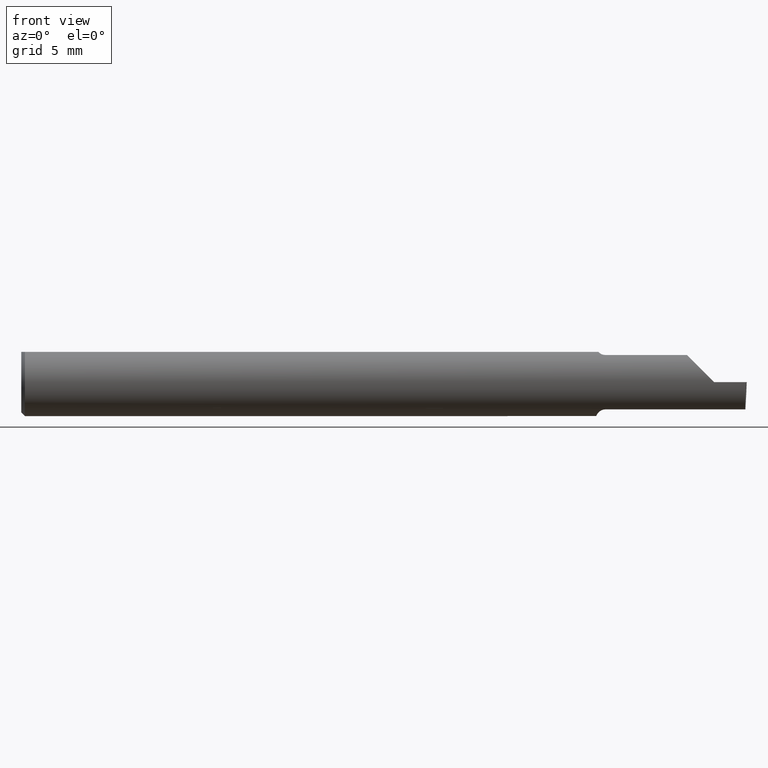
[diagram: clean part render]
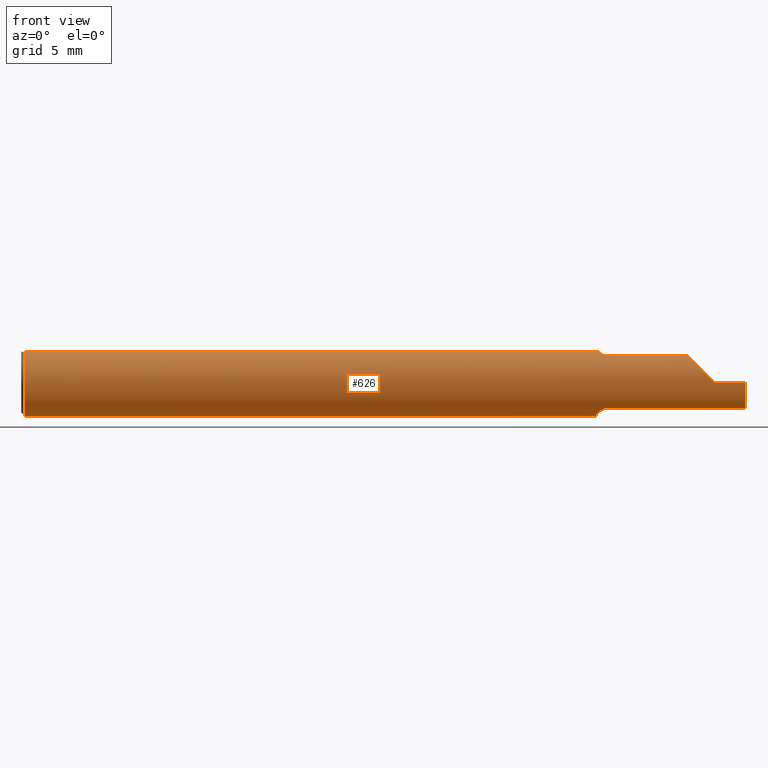
[diagram: same view with one face highlighted and labeled with its STEP entity id]
A machine part, front view. The second image highlights one B-rep face of the part: STEP entity #626.
In plain terms, the highlighted cylindrical surface (edge-blend (fillet) strip) has radius 2.3774 mm, axis along (-1, -0, -0).
Its self-contained STEP definition (entity closure, byte-faithful):
#16 = CARTESIAN_POINT ( 'NONE',  ( 1.796240804999999829, -0.05810704225352107677, 0.07337936794867833123 ) ) ;
#21 = CARTESIAN_POINT ( 'NONE',  ( 1.836620632051321200, -0.05810704225352102820, 0.07337936794867834511 ) ) ;
#25 = EDGE_CURVE ( 'NONE', #123, #194, #84, .T. ) ;
#43 = ORIENTED_EDGE ( 'NONE', *, *, #310, .F. ) ;
#50 = B_SPLINE_CURVE_WITH_KNOTS ( 'NONE', 3,
 ( #173, #559, #242, #719, #163, #417 ),
 .UNSPECIFIED., .F., .F.,
 ( 4, 2, 4 ),
 ( 0.0007041963409106240896, 0.001193146413573845706, 0.001682096486237067649 ),
 .UNSPECIFIED. ) ;
#58 = VERTEX_POINT ( 'NONE', #440 ) ;
#60 = CARTESIAN_POINT ( 'NONE',  ( 1.609999999999999654, -0.05810704225352104207, -0.07337936794867833123 ) ) ;
#68 = VERTEX_POINT ( 'NONE', #228 ) ;
#70 = EDGE_CURVE ( 'NONE', #58, #660, #364, .T. ) ;
#80 = CARTESIAN_POINT ( 'NONE',  ( 1.609999999999999654, -0.05810704225352105595, 0.07337936794867833123 ) ) ;
#81 = VERTEX_POINT ( 'NONE', #360 ) ;
#84 = LINE ( 'NONE', #341, #366 ) ;
#90 =( BOUNDED_CURVE ( )  B_SPLINE_CURVE ( 3, ( #273, #521, #563, #145 ),
 .UNSPECIFIED., .F., .F. ) 
 B_SPLINE_CURVE_WITH_KNOTS ( ( 4, 4 ),
 ( 0.2063001339125309086, 1.107331509589561058 ),
 .UNSPECIFIED. ) 
 CURVE ( )  GEOMETRIC_REPRESENTATION_ITEM ( )  RATIONAL_B_SPLINE_CURVE ( ( 1.000000000000000000, 0.9334817841311873199, 0.9334817841311873199, 1.000000000000000000 ) ) 
 REPRESENTATION_ITEM ( '' )  );
#92 = DIRECTION ( 'NONE',  ( 1.000000000000000000, 0.000000000000000000, 0.000000000000000000 ) ) ;
#95 =( BOUNDED_CURVE ( )  B_SPLINE_CURVE ( 3, ( #462, #708, #646, #21 ),
 .UNSPECIFIED., .F., .F. ) 
 B_SPLINE_CURVE_WITH_KNOTS ( ( 4, 4 ),
 ( 4.712388980384689674, 5.613420356061720184 ),
 .UNSPECIFIED. ) 
 CURVE ( )  GEOMETRIC_REPRESENTATION_ITEM ( )  RATIONAL_B_SPLINE_CURVE ( ( 1.000000000000000000, 0.9334817841311873199, 0.9334817841311873199, 1.000000000000000000 ) ) 
 REPRESENTATION_ITEM ( '' )  );
#96 = VERTEX_POINT ( 'NONE', #609 ) ;
#99 = ORIENTED_EDGE ( 'NONE', *, *, #100, .F. ) ;
#100 = EDGE_CURVE ( 'NONE', #198, #697, #296, .T. ) ;
#103 = DIRECTION ( 'NONE',  ( 1.000000000000000000, 0.000000000000000000, 0.000000000000000000 ) ) ;
#104 = CARTESIAN_POINT ( 'NONE',  ( 1.595264545693809044, -0.04993027844100252771, -0.07924826417278522939 ) ) ;
#112 = EDGE_CURVE ( 'NONE', #68, #194, #407, .T. ) ;
#114 = CARTESIAN_POINT ( 'NONE',  ( 1.607653034764491284, -0.05810704225352101432, -0.07337936794867834511 ) ) ;
#119 = ORIENTED_EDGE ( 'NONE', *, *, #433, .T. ) ;
#122 = CARTESIAN_POINT ( 'NONE',  ( 1.593086474849918499, -0.04638796853538170589, -0.08140770120152260314 ) ) ;
#123 = VERTEX_POINT ( 'NONE', #481 ) ;
#126 = ORIENTED_EDGE ( 'NONE', *, *, #70, .T. ) ;
#129 = VECTOR ( 'NONE', #103, 39.37007874015748143 ) ;
#145 = CARTESIAN_POINT ( 'NONE',  ( 1.996942494641693600, -0.09360000000000001652, 0.000000000000000000 ) ) ;
#149 = DIRECTION ( 'NONE',  ( 1.000000000000000000, 0.000000000000000000, 0.000000000000000000 ) ) ;
#158 = CIRCLE ( 'NONE', #484, 0.09360000000000001652 ) ;
#159 = CARTESIAN_POINT ( 'NONE',  ( 1.607655343791669855, -0.05810704225352101432, 0.07337936794867834511 ) ) ;
#163 = CARTESIAN_POINT ( 'NONE',  ( 1.584999999999999964, -0.01308640439514271829, -0.09289765197734378699 ) ) ;
#166 = DIRECTION ( 'NONE',  ( 0.000000000000000000, 0.000000000000000000, -1.000000000000000000 ) ) ;
#172 = AXIS2_PLACEMENT_3D ( 'NONE', #587, #338, #270 ) ;
#173 = CARTESIAN_POINT ( 'NONE',  ( 1.591356684838558744, -0.04260000000000005449, -0.08334386600104409792 ) ) ;
#194 = VERTEX_POINT ( 'NONE', #328 ) ;
#198 = VERTEX_POINT ( 'NONE', #60 ) ;
#201 = ORIENTED_EDGE ( 'NONE', *, *, #223, .F. ) ;
#204 = ORIENTED_EDGE ( 'NONE', *, *, #798, .T. ) ;
#205 = FACE_OUTER_BOUND ( 'NONE', #637, .T. ) ;
#206 = CARTESIAN_POINT ( 'NONE',  ( 1.609999999999999654, -0.05810704225352105595, 0.07337936794867833123 ) ) ;
#219 = AXIS2_PLACEMENT_3D ( 'NONE', #544, #788, #231 ) ;
#223 = EDGE_CURVE ( 'NONE', #451, #516, #415, .T. ) ;
#228 = CARTESIAN_POINT ( 'NONE',  ( 0.01000000000000016674, 0.000000000000000000, -0.09360000000000001652 ) ) ;
#231 = DIRECTION ( 'NONE',  ( 0.000000000000000000, 0.000000000000000000, -1.000000000000000000 ) ) ;
#234 = DIRECTION ( 'NONE',  ( -1.000000000000000000, -0.000000000000000000, -0.000000000000000000 ) ) ;
#237 = ORIENTED_EDGE ( 'NONE', *, *, #25, .F. ) ;
#242 = CARTESIAN_POINT ( 'NONE',  ( 1.587415450430338160, -0.03151229630690478845, -0.08835846806355293626 ) ) ;
#244 = CARTESIAN_POINT ( 'NONE',  ( 1.605389671955115727, -0.05750350940205781886, -0.07386306649500083699 ) ) ;
#251 = CYLINDRICAL_SURFACE ( 'NONE', #172, 0.09360000000000001652 ) ;
#262 = CARTESIAN_POINT ( 'NONE',  ( 1.591280153739604852, -0.04243240890922558850, 0.08342952773968848046 ) ) ;
#270 = DIRECTION ( 'NONE',  ( 0.000000000000000000, 0.000000000000000000, 1.000000000000000000 ) ) ;
#273 = CARTESIAN_POINT ( 'NONE',  ( 1.994999172194938941, -0.05810704225352107677, -0.07337936794867833123 ) ) ;
#275 = DIRECTION ( 'NONE',  ( 1.000000000000000000, 0.000000000000000000, 0.000000000000000000 ) ) ;
#276 = VECTOR ( 'NONE', #275, 39.37007874015748143 ) ;
#296 = B_SPLINE_CURVE_WITH_KNOTS ( 'NONE', 3,
 ( #663, #114, #244, #496, #549, #104, #122, #794 ),
 .UNSPECIFIED., .F., .F.,
 ( 4, 2, 2, 4 ),
 ( 1.968126669309073504E-07, 0.0001761966947278509495, 0.0003521965767887710289, 0.0007041963409106240896 ),
 .UNSPECIFIED. ) ;
#297 = CARTESIAN_POINT ( 'NONE',  ( 1.591129652885479473, -0.04209513035970123551, 0.08359999999999991049 ) ) ;
#300 = LINE ( 'NONE', #543, #457 ) ;
#305 = CARTESIAN_POINT ( 'NONE',  ( 2.999519565323742037E-32, -0.09359999999999998876, 2.449293598294716768E-16 ) ) ;
#310 = EDGE_CURVE ( 'NONE', #516, #422, #350, .T. ) ;
#319 = CARTESIAN_POINT ( 'NONE',  ( 1.591129652885479473, -0.04209513035970123551, 0.08359999999999991049 ) ) ;
#328 = CARTESIAN_POINT ( 'NONE',  ( 0.01000000000000016674, 0.04209513035969864037, 0.08359999999999988274 ) ) ;
#331 = CARTESIAN_POINT ( 'NONE',  ( 1.591356684838558744, -0.04260000000000005449, -0.08334386600104409792 ) ) ;
#333 = ORIENTED_EDGE ( 'NONE', *, *, #548, .F. ) ;
#338 = DIRECTION ( 'NONE',  ( -1.000000000000000000, -0.000000000000000000, -0.000000000000000000 ) ) ;
#341 = CARTESIAN_POINT ( 'NONE',  ( 0.000000000000000000, 0.04209513035969864037, 0.08359999999999988274 ) ) ;
#350 = B_SPLINE_CURVE_WITH_KNOTS ( 'NONE', 3,
 ( #696, #757, #621, #445, #806, #717, #159, #206 ),
 .UNSPECIFIED., .F., .F.,
 ( 4, 2, 2, 4 ),
 ( 1.584523690453298655E-05, 0.0003656721978374717109, 0.0005405856783039409037, 0.0007154991587704100965 ),
 .UNSPECIFIED. ) ;
#353 = AXIS2_PLACEMENT_3D ( 'NONE', #707, #149, #400 ) ;
#360 = CARTESIAN_POINT ( 'NONE',  ( 1.584999999999999964, -0.006757276995305234492, -0.09335576686851605743 ) ) ;
#364 = LINE ( 'NONE', #305, #766 ) ;
#366 = VECTOR ( 'NONE', #591, 39.37007874015748143 ) ;
#374 = CARTESIAN_POINT ( 'NONE',  ( 1.910000000000000142, -0.09360000000000005815, 1.102182119232621301E-17 ) ) ;
#400 = DIRECTION ( 'NONE',  ( 0.000000000000000000, 0.000000000000000000, -1.000000000000000000 ) ) ;
#405 = CARTESIAN_POINT ( 'NONE',  ( 0.01000000000000016674, 0.000000000000000000, 0.000000000000000000 ) ) ;
#407 = CIRCLE ( 'NONE', #219, 0.09360000000000001652 ) ;
#415 = B_SPLINE_CURVE_WITH_KNOTS ( 'NONE', 3,
 ( #319, #688, #262, #510 ),
 .UNSPECIFIED., .F., .F.,
 ( 4, 4 ),
 ( 4.741820243509563606E-07, 1.584523690453298655E-05 ),
 .UNSPECIFIED. ) ;
#417 = CARTESIAN_POINT ( 'NONE',  ( 1.584999999999999964, -0.006757276995305234492, -0.09335576686851605743 ) ) ;
#422 = VERTEX_POINT ( 'NONE', #80 ) ;
#432 = EDGE_CURVE ( 'NONE', #422, #711, #585, .T. ) ;
#433 = EDGE_CURVE ( 'NONE', #660, #711, #95, .T. ) ;
#440 = CARTESIAN_POINT ( 'NONE',  ( 1.996942494641693600, -0.09360000000000001652, 0.000000000000000000 ) ) ;
#445 = CARTESIAN_POINT ( 'NONE',  ( 1.599746577633803346, -0.05429945193459796010, 0.07626038032150810053 ) ) ;
#451 = VERTEX_POINT ( 'NONE', #297 ) ;
#457 = VECTOR ( 'NONE', #234, 39.37007874015748143 ) ;
#462 = CARTESIAN_POINT ( 'NONE',  ( 1.910000000000000142, -0.09360000000000005815, 1.102182119232621301E-17 ) ) ;
#475 = EDGE_CURVE ( 'NONE', #697, #81, #50, .T. ) ;
#480 = CARTESIAN_POINT ( 'NONE',  ( 0.000000000000000000, -0.04209513035969864037, 0.08359999999999988274 ) ) ;
#481 = CARTESIAN_POINT ( 'NONE',  ( 1.584999999999999964, 0.04209513035969864037, 0.08359999999999988274 ) ) ;
#484 = AXIS2_PLACEMENT_3D ( 'NONE', #405, #92, #166 ) ;
#492 = DIRECTION ( 'NONE',  ( -1.000000000000000000, -0.000000000000000000, -0.000000000000000000 ) ) ;
#496 = CARTESIAN_POINT ( 'NONE',  ( 1.601446782524423629, -0.05558685324519218457, -0.07531605361338931937 ) ) ;
#510 = CARTESIAN_POINT ( 'NONE',  ( 1.591356684838558744, -0.04260000000000006837, 0.08334386600104411180 ) ) ;
#512 = EDGE_CURVE ( 'NONE', #574, #198, #300, .T. ) ;
#516 = VERTEX_POINT ( 'NONE', #599 ) ;
#521 = CARTESIAN_POINT ( 'NONE',  ( 1.995231968854677573, -0.08092595952420823802, -0.05530971394246247952 ) ) ;
#523 = CIRCLE ( 'NONE', #353, 0.09360000000000001652 ) ;
#534 = ORIENTED_EDGE ( 'NONE', *, *, #112, .T. ) ;
#543 = CARTESIAN_POINT ( 'NONE',  ( 1.796240804999999829, -0.05810704225352107677, -0.07337936794867833123 ) ) ;
#544 = CARTESIAN_POINT ( 'NONE',  ( 0.01000000000000016674, 0.000000000000000000, 0.000000000000000000 ) ) ;
#548 = EDGE_CURVE ( 'NONE', #96, #451, #672, .T. ) ;
#549 = CARTESIAN_POINT ( 'NONE',  ( 1.599728336617688207, -0.05428341532129029451, -0.07627162539867106406 ) ) ;
#559 = CARTESIAN_POINT ( 'NONE',  ( 1.588953896433695334, -0.03733827064844358334, -0.08603332211978829969 ) ) ;
#563 = CARTESIAN_POINT ( 'NONE',  ( 1.995925902212489333, -0.09359999999999997489, -0.02910696448121682586 ) ) ;
#574 = VERTEX_POINT ( 'NONE', #616 ) ;
#585 = LINE ( 'NONE', #16, #276 ) ;
#587 = CARTESIAN_POINT ( 'NONE',  ( 0.000000000000000000, 0.000000000000000000, 0.000000000000000000 ) ) ;
#591 = DIRECTION ( 'NONE',  ( -1.000000000000000000, -0.000000000000000000, -0.000000000000000000 ) ) ;
#599 = CARTESIAN_POINT ( 'NONE',  ( 1.591356684838558744, -0.04260000000000006837, 0.08334386600104411180 ) ) ;
#609 = CARTESIAN_POINT ( 'NONE',  ( 0.01000000000000016674, -0.04209513035969864037, 0.08359999999999988274 ) ) ;
#616 = CARTESIAN_POINT ( 'NONE',  ( 1.994999172194938941, -0.05810704225352107677, -0.07337936794867833123 ) ) ;
#621 = CARTESIAN_POINT ( 'NONE',  ( 1.595259025420519450, -0.04992838138009409593, 0.07925011723318660384 ) ) ;
#626 = ADVANCED_FACE ( 'NONE', ( #205 ), #251, .T. ) ;
#633 = ORIENTED_EDGE ( 'NONE', *, *, #432, .F. ) ;
#637 = EDGE_LOOP ( 'NONE', ( #747, #667, #126, #119, #633, #43, #201, #333, #204, #534, #237, #652, #682, #99 ) ) ;
#646 = CARTESIAN_POINT ( 'NONE',  ( 1.854690286057536941, -0.08092595952420821026, 0.05530971394246249340 ) ) ;
#652 = ORIENTED_EDGE ( 'NONE', *, *, #681, .F. ) ;
#654 = EDGE_CURVE ( 'NONE', #574, #58, #90, .T. ) ;
#660 = VERTEX_POINT ( 'NONE', #374 ) ;
#663 = CARTESIAN_POINT ( 'NONE',  ( 1.609999999999999654, -0.05810704225352104207, -0.07337936794867833123 ) ) ;
#667 = ORIENTED_EDGE ( 'NONE', *, *, #654, .T. ) ;
#672 = LINE ( 'NONE', #480, #129 ) ;
#681 = EDGE_CURVE ( 'NONE', #81, #123, #523, .T. ) ;
#682 = ORIENTED_EDGE ( 'NONE', *, *, #475, .F. ) ;
#684 = CARTESIAN_POINT ( 'NONE',  ( 1.836620632051321200, -0.05810704225352102820, 0.07337936794867834511 ) ) ;
#688 = CARTESIAN_POINT ( 'NONE',  ( 1.591204482410374377, -0.04226411763296350488, 0.08351490979309539320 ) ) ;
#696 = CARTESIAN_POINT ( 'NONE',  ( 1.591356684838558744, -0.04260000000000006837, 0.08334386600104411180 ) ) ;
#697 = VERTEX_POINT ( 'NONE', #331 ) ;
#707 = CARTESIAN_POINT ( 'NONE',  ( 1.584999999999999964, 0.000000000000000000, 0.000000000000000000 ) ) ;
#708 = CARTESIAN_POINT ( 'NONE',  ( 1.880893035518782730, -0.09359999999999997489, 0.02910696448121682239 ) ) ;
#711 = VERTEX_POINT ( 'NONE', #684 ) ;
#717 = CARTESIAN_POINT ( 'NONE',  ( 1.605389214148234434, -0.05750155061631017500, 0.07386444488392714114 ) ) ;
#719 = CARTESIAN_POINT ( 'NONE',  ( 1.585436655799339345, -0.01945041057485642419, -0.09177104786119409663 ) ) ;
#747 = ORIENTED_EDGE ( 'NONE', *, *, #512, .F. ) ;
#757 = CARTESIAN_POINT ( 'NONE',  ( 1.593098441794898346, -0.04641417426599074580, 0.08139430652501543351 ) ) ;
#766 = VECTOR ( 'NONE', #492, 39.37007874015748143 ) ;
#788 = DIRECTION ( 'NONE',  ( 1.000000000000000000, 0.000000000000000000, 0.000000000000000000 ) ) ;
#794 = CARTESIAN_POINT ( 'NONE',  ( 1.591356684838558744, -0.04260000000000005449, -0.08334386600104409792 ) ) ;
#798 = EDGE_CURVE ( 'NONE', #96, #68, #158, .T. ) ;
#806 = CARTESIAN_POINT ( 'NONE',  ( 1.601469028275930739, -0.05559939362423882425, 0.07530665289274077190 ) ) ;